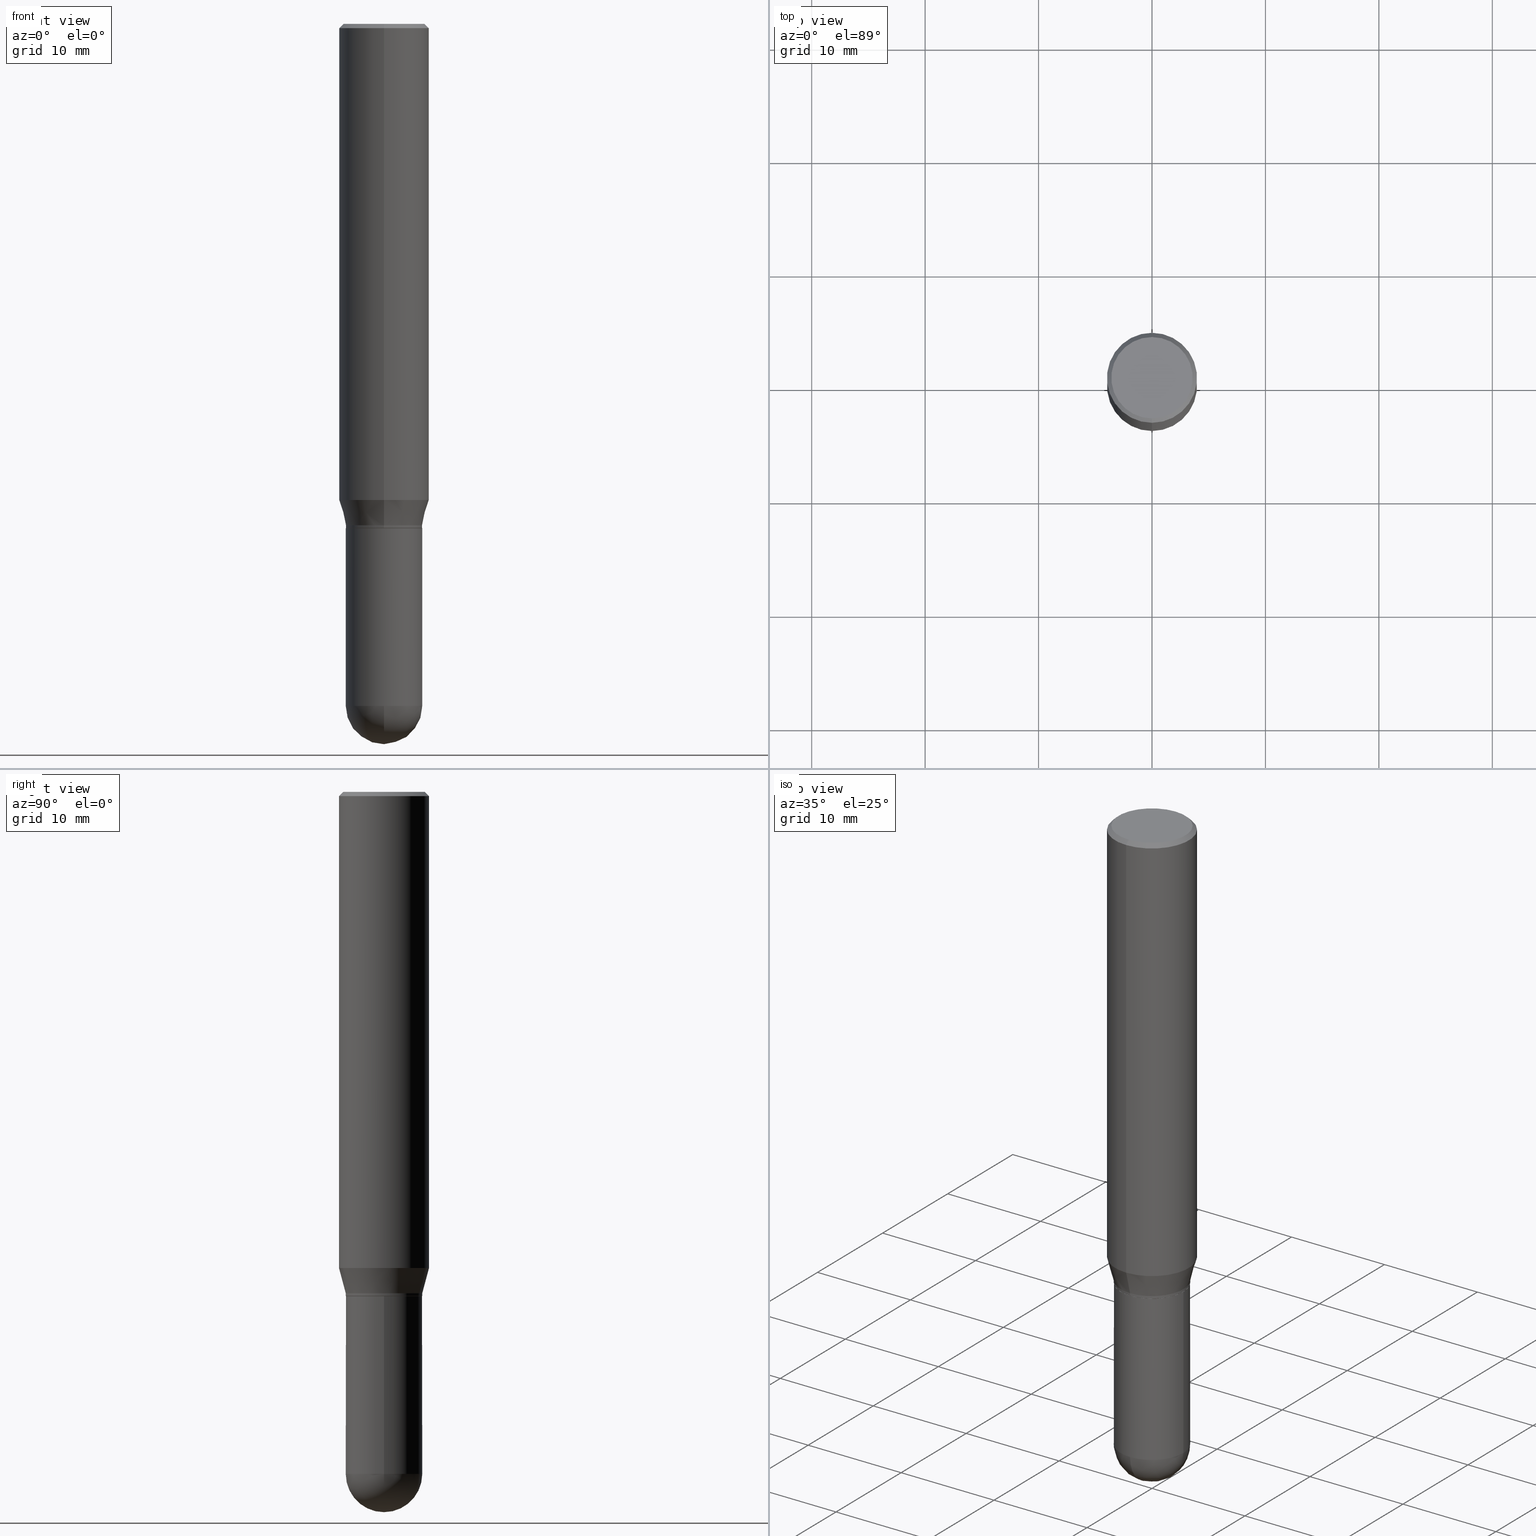
[diagram: canonical four-view strip — front | top / right | iso, engineering-drawing reading convention]
A machine part, canonical four-view strip (front | top / right | iso — engineering-drawing reading convention). The complete STEP part file that produces these views, byte-faithful:
ISO-10303-21;
HEADER;
FILE_DESCRIPTION (( 'STEP AP203' ),
    '1' );
FILE_NAME ('31146.STEP',
    '2024-03-08T15:55:13',
    ( '' ),
    ( '' ),
    'SwSTEP 2.0',
    'SolidWorks 2023',
    '' );
FILE_SCHEMA (( 'CONFIG_CONTROL_DESIGN' ));
ENDSEC;

DATA;
#1 = CALENDAR_DATE ( 2024, 8, 3 ) ;
#2 = ORIENTED_EDGE ( 'NONE', *, *, #126, .T. ) ;
#3 = DATE_TIME_ROLE ( 'creation_date' ) ;
#4 = PLANE ( 'NONE',  #323 ) ;
#5 = CIRCLE ( 'NONE', #39, 0.1327999999999999181 ) ;
#6 = VERTEX_POINT ( 'NONE', #15 ) ;
#7 = EDGE_CURVE ( 'NONE', #434, #440, #14, .T. ) ;
#8 = ORIENTED_EDGE ( 'NONE', *, *, #88, .T. ) ;
#9 = APPLICATION_CONTEXT ( 'configuration controlled 3d designs of mechanical parts and assemblies' ) ;
#10 = CARTESIAN_POINT ( 'NONE',  ( 1.026911888857325918E-15, 0.1327999999999938396, -1.740000000000000657 ) ) ;
#11 = PRODUCT_DEFINITION ( 'UNKNOWN', '', #213, #302 ) ;
#12 = ORIENTED_EDGE ( 'NONE', *, *, #279, .T. ) ;
#13 = CARTESIAN_POINT ( 'NONE',  ( 1.091087918388479371E-15, 0.1562499999999999445, -0.01500000000000066558 ) ) ;
#14 = CIRCLE ( 'NONE', #307, 0.1328000000000000014 ) ;
#15 = CARTESIAN_POINT ( 'NONE',  ( 1.038715698305832292E-15, 0.1412499999999999867, -6.132962956503047871E-16 ) ) ;
#16 = DIRECTION ( 'NONE',  ( -6.982962677686265133E-15, -1.000000000000000000, 3.496765431890256920E-15 ) ) ;
#17 = AXIS2_PLACEMENT_3D ( 'NONE', #301, #463, #270 ) ;
#18 = CARTESIAN_POINT ( 'NONE',  ( 5.788913758001455526E-29, -8.265034625309493084E-15, -2.367199999999999971 ) ) ;
#19 = ORIENTED_EDGE ( 'NONE', *, *, #259, .F. ) ;
#20 = DIRECTION ( 'NONE',  ( -6.982962677686265133E-15, -1.000000000000000000, 4.114228906120880627E-15 ) ) ;
#21 = CARTESIAN_POINT ( 'NONE',  ( 5.777557149681153201E-29, -8.281297934802172088E-15, -2.367199999999999971 ) ) ;
#22 = DIRECTION ( 'NONE',  ( 6.982962677686265922E-15, 1.000000000000000000, -4.114228906120878260E-15 ) ) ;
#23 = CARTESIAN_POINT ( 'NONE',  ( 2.936853476447729499E-45, -4.193470271377658655E-31, -1.200997118054766005E-16 ) ) ;
#24 = EDGE_CURVE ( 'NONE', #410, #476, #422, .T. ) ;
#25 = DIRECTION ( 'NONE',  ( -2.445468806185136877E-29, 3.491481338843145188E-15, 1.000000000000000000 ) ) ;
#26 = AXIS2_PLACEMENT_3D ( 'NONE', #376, #87, #217 ) ;
#27 = DIRECTION ( 'NONE',  ( -2.445345981516174728E-29, 3.491657230759845150E-15, 1.000000000000000000 ) ) ;
#28 = DIRECTION ( 'NONE',  ( 1.000000000000000000, -6.982962677686263555E-15, 0.000000000000000000 ) ) ;
#29 = DIRECTION ( 'NONE',  ( -2.445468806185136597E-29, 3.491481338843145583E-15, 1.000000000000000000 ) ) ;
#30 = CALENDAR_DATE ( 2024, 8, 3 ) ;
#31 = CARTESIAN_POINT ( 'NONE',  ( 4.254902007838144106E-29, -6.075483581522130008E-15, -1.739999999999999991 ) ) ;
#32 = CARTESIAN_POINT ( 'NONE',  ( 0.000000000000000000, 0.000000000000000000, 0.000000000000000000 ) ) ;
#33 = CIRCLE ( 'NONE', #164, 0.1327999999999999181 ) ;
#34 = CONICAL_SURFACE ( 'NONE', #133, 0.1327999999999999181, 0.2617993877991504625 ) ;
#35 = DIRECTION ( 'NONE',  ( -2.445345981516174728E-29, 3.491657230759845150E-15, 1.000000000000000000 ) ) ;
#36 = PRODUCT_RELATED_PRODUCT_CATEGORY ( 'detail', '', ( #439 ) ) ;
#37 = EDGE_LOOP ( 'NONE', ( #197, #8, #174, #398 ) ) ;
#38 = CONICAL_SURFACE ( 'NONE', #58, 0.1562500000000000000, 0.7853981633974485010 ) ;
#39 = AXIS2_PLACEMENT_3D ( 'NONE', #408, #370, #454 ) ;
#40 = AXIS2_PLACEMENT_3D ( 'NONE', #388, #115, #150 ) ;
#41 = EDGE_CURVE ( 'NONE', #93, #141, #472, .T. ) ;
#42 = FACE_OUTER_BOUND ( 'NONE', #276, .T. ) ;
#43 = ORIENTED_EDGE ( 'NONE', *, *, #391, .F. ) ;
#44 = CALENDAR_DATE ( 2024, 8, 3 ) ;
#45 = VERTEX_POINT ( 'NONE', #223 ) ;
#46 = PERSON_AND_ORGANIZATION_ROLE ( 'design_supplier' ) ;
#47 = VECTOR ( 'NONE', #504, 39.37007874015748143 ) ;
#48 = CIRCLE ( 'NONE', #160, 0.1323000000000000009 ) ;
#49 = EDGE_LOOP ( 'NONE', ( #237, #377, #494, #96 ) ) ;
#50 = DIRECTION ( 'NONE',  ( -2.445345981516174728E-29, 3.491657230759845150E-15, 1.000000000000000000 ) ) ;
#51 = DIRECTION ( 'NONE',  ( -4.851104656540965064E-15, -0.7071067811865501263, -0.7071067811865449082 ) ) ;
#52 = ADVANCED_FACE ( 'NONE', ( #187 ), #38, .T. ) ;
#53 = ORIENTED_EDGE ( 'NONE', *, *, #447, .T. ) ;
#54 = LINE ( 'NONE', #299, #498 ) ;
#55 = CARTESIAN_POINT ( 'NONE',  ( -1.091087918388478779E-15, -0.1562500000000000833, -0.01499999999999957270 ) ) ;
#56 = EDGE_LOOP ( 'NONE', ( #195, #283, #512, #19 ) ) ;
#57 = DIRECTION ( 'NONE',  ( -6.982962677686265133E-15, -1.000000000000000000, 3.496765431890256920E-15 ) ) ;
#58 = AXIS2_PLACEMENT_3D ( 'NONE', #148, #155, #266 ) ;
#59 = VERTEX_POINT ( 'NONE', #507 ) ;
#60 = DIRECTION ( 'NONE',  ( -2.445468806185136877E-29, 3.491481338843145188E-15, 1.000000000000000000 ) ) ;
#61 = CIRCLE ( 'NONE', #342, 0.1412499999999999867 ) ;
#62 = CARTESIAN_POINT ( 'NONE',  ( 9.273374435967940064E-16, 0.1327999999999917302, -2.367200000000000415 ) ) ;
#63 = ORIENTED_EDGE ( 'NONE', *, *, #172, .T. ) ;
#64 = DIRECTION ( 'NONE',  ( -6.982962677686265922E-15, -1.000000000000000000, 4.129777768199944284E-15 ) ) ;
#65 = CARTESIAN_POINT ( 'NONE',  ( -0.1328000000000000014, 9.436007530894130566E-16, -6.532345799858513932E-30 ) ) ;
#66 = CARTESIAN_POINT ( 'NONE',  ( 4.279570410823989044E-29, -6.110092342975505460E-15, -1.750000000000000222 ) ) ;
#67 = SPHERICAL_SURFACE ( 'NONE', #228, 0.1328000000000000014 ) ;
#68 = DIRECTION ( 'NONE',  ( -6.982962677686265133E-15, -1.000000000000000000, 4.114228906120880627E-15 ) ) ;
#69 = PERSON_AND_ORGANIZATION_ROLE ( 'design_owner' ) ;
#70 = ADVANCED_FACE ( 'NONE', ( #385 ), #309, .T. ) ;
#71 = DIRECTION ( 'NONE',  ( -2.445468806185136597E-29, 3.491481338843145583E-15, 1.000000000000000000 ) ) ;
#72 = COORDINATED_UNIVERSAL_TIME_OFFSET ( 5, 0, .BEHIND. ) ;
#73 = DIRECTION ( 'NONE',  ( -2.445345981516174728E-29, 3.491657230759845150E-15, 1.000000000000000000 ) ) ;
#74 = CARTESIAN_POINT ( 'NONE',  ( 5.777557149681153201E-29, -8.281297934802172088E-15, -2.367199999999999971 ) ) ;
#75 = FACE_OUTER_BOUND ( 'NONE', #37, .T. ) ;
#76 = CIRCLE ( 'NONE', #363, 0.1327999999999999181 ) ;
#77 = EDGE_LOOP ( 'NONE', ( #481, #317 ) ) ;
#78 = SHAPE_DEFINITION_REPRESENTATION ( #361, #100 ) ;
#79 = APPROVAL ( #318, 'UNSPECIFIED' ) ;
#80 = ORIENTED_EDGE ( 'NONE', *, *, #88, .F. ) ;
#81 = VERTEX_POINT ( 'NONE', #502 ) ;
#82 = CIRCLE ( 'NONE', #112, 0.1562500000000000000 ) ;
#83 = UNCERTAINTY_MEASURE_WITH_UNIT (LENGTH_MEASURE( 1.000000000000000082E-05 ), #186, 'distance_accuracy_value', 'NONE');
#84 = ADVANCED_FACE ( 'NONE', ( #349 ), #260, .F. ) ;
#85 = ORIENTED_EDGE ( 'NONE', *, *, #192, .T. ) ;
#86 = EDGE_CURVE ( 'NONE', #45, #366, #145, .T. ) ;
#87 = DIRECTION ( 'NONE',  ( -2.445345981516174448E-29, 3.491657230759844755E-15, 1.000000000000000000 ) ) ;
#88 = EDGE_CURVE ( 'NONE', #45, #290, #33, .T. ) ;
#89 = AXIS2_PLACEMENT_3D ( 'NONE', #136, #291, #452 ) ;
#90 = ORIENTED_EDGE ( 'NONE', *, *, #442, .F. ) ;
#91 = DIRECTION ( 'NONE',  ( -2.445468806185136597E-29, 3.491481338843145583E-15, 1.000000000000000000 ) ) ;
#92 = CARTESIAN_POINT ( 'NONE',  ( -0.1328000000000000014, -6.243962731053086807E-15, -2.367199999999999971 ) ) ;
#93 = VERTEX_POINT ( 'NONE', #465 ) ;
#94 = CYLINDRICAL_SURFACE ( 'NONE', #403, 0.1328000000000000014 ) ;
#95 = DIRECTION ( 'NONE',  ( -4.937700262164631661E-15, -0.7071067811865571207, 0.7071067811865379138 ) ) ;
#96 = ORIENTED_EDGE ( 'NONE', *, *, #156, .F. ) ;
#97 = CARTESIAN_POINT ( 'NONE',  ( 4.254902007838144106E-29, -6.075483581522130008E-15, -1.739999999999999991 ) ) ;
#98 = FACE_OUTER_BOUND ( 'NONE', #177, .T. ) ;
#99 = CARTESIAN_POINT ( 'NONE',  ( 0.1328000000000000014, -8.114900927739235889E-15, -2.367199999999999971 ) ) ;
#100 = ADVANCED_BREP_SHAPE_REPRESENTATION ( '31146', ( #471, #285, #40 ), #490 ) ;
#101 = AXIS2_PLACEMENT_3D ( 'NONE', #74, #424, #227 ) ;
#102 = ADVANCED_FACE ( 'NONE', ( #470 ), #262, .T. ) ;
#103 = EDGE_LOOP ( 'NONE', ( #453, #85, #124, #441 ) ) ;
#104 = PLANE ( 'NONE',  #26 ) ;
#105 = DIRECTION ( 'NONE',  ( 1.000000000000000000, -6.982962677686263555E-15, 0.000000000000000000 ) ) ;
#106 = DIRECTION ( 'NONE',  ( 1.000000000000000000, -6.982962677686263555E-15, 0.000000000000000000 ) ) ;
#107 = DIMENSIONAL_EXPONENTS ( 1.000000000000000000, 0.000000000000000000, 0.000000000000000000, 0.000000000000000000, 0.000000000000000000, 0.000000000000000000, 0.000000000000000000 ) ;
#108 = CARTESIAN_POINT ( 'NONE',  ( 0.000000000000000000, 0.000000000000000000, 0.000000000000000000 ) ) ;
#109 = EDGE_CURVE ( 'NONE', #81, #292, #118, .T. ) ;
#110 = DIRECTION ( 'NONE',  ( 2.445345981516174448E-29, -3.491657230759844755E-15, -1.000000000000000000 ) ) ;
#111 = DATE_AND_TIME ( #305, #404 ) ;
#112 = AXIS2_PLACEMENT_3D ( 'NONE', #139, #176, #57 ) ;
#113 = CARTESIAN_POINT ( 'NONE',  ( 5.777557149681153201E-29, -8.281297934802172088E-15, -2.367199999999999971 ) ) ;
#114 = DIRECTION ( 'NONE',  ( -6.982962677686265133E-15, -1.000000000000000000, 3.491657230759845150E-15 ) ) ;
#115 = DIRECTION ( 'NONE',  ( 0.000000000000000000, 0.000000000000000000, 1.000000000000000000 ) ) ;
#116 = ADVANCED_FACE ( 'NONE', ( #268 ), #67, .T. ) ;
#117 = PERSON_AND_ORGANIZATION ( #400, #364 ) ;
#118 = CIRCLE ( 'NONE', #101, 0.1328000000000000014 ) ;
#119 = AXIS2_PLACEMENT_3D ( 'NONE', #252, #443, #405 ) ;
#120 = LOCAL_TIME ( 10, 55, 13.00000000000000000, #238 ) ;
#121 = CARTESIAN_POINT ( 'NONE',  ( -9.273374435967354335E-16, -0.1327999999999999181, 4.636920802449071606E-16 ) ) ;
#122 = ORIENTED_EDGE ( 'NONE', *, *, #420, .F. ) ;
#123 = PERSON_AND_ORGANIZATION ( #400, #364 ) ;
#124 = ORIENTED_EDGE ( 'NONE', *, *, #269, .F. ) ;
#125 = CARTESIAN_POINT ( 'NONE',  ( -9.436007530893550753E-16, -0.1328000000000082725, -2.367199999999999083 ) ) ;
#126 = EDGE_CURVE ( 'NONE', #334, #476, #313, .T. ) ;
#127 = LINE ( 'NONE', #135, #396 ) ;
#128 = VECTOR ( 'NONE', #95, 39.37007874015748143 ) ;
#129 = ADVANCED_FACE ( 'NONE', ( #379 ), #432, .T. ) ;
#130 = ORIENTED_EDGE ( 'NONE', *, *, #7, .T. ) ;
#131 = ORIENTED_EDGE ( 'NONE', *, *, #279, .F. ) ;
#132 = DIRECTION ( 'NONE',  ( 6.982962677686265133E-15, 1.000000000000000000, -3.496765431890256920E-15 ) ) ;
#133 = AXIS2_PLACEMENT_3D ( 'NONE', #229, #232, #68 ) ;
#134 = ORIENTED_EDGE ( 'NONE', *, *, #406, .T. ) ;
#135 = CARTESIAN_POINT ( 'NONE',  ( -9.273374435966928350E-16, -0.1328000000000059966, -1.739999999999999547 ) ) ;
#136 = CARTESIAN_POINT ( 'NONE',  ( 5.788913758001455526E-29, -8.265034625309493084E-15, -2.367199999999999971 ) ) ;
#137 = EDGE_LOOP ( 'NONE', ( #294, #199, #436, #330 ) ) ;
#138 = DIRECTION ( 'NONE',  ( -1.807323732225331323E-15, -0.2588190451025183525, 0.9659258262890689783 ) ) ;
#139 = CARTESIAN_POINT ( 'NONE',  ( 4.040893662650484350E-29, -5.769905642217962811E-15, -1.652483408562509748 ) ) ;
#140 = EDGE_CURVE ( 'NONE', #165, #251, #288, .T. ) ;
#141 = VERTEX_POINT ( 'NONE', #258 ) ;
#142 = CARTESIAN_POINT ( 'NONE',  ( 0.1328000000000000014, -7.037429786572241288E-15, -1.750000000000000222 ) ) ;
#143 = LINE ( 'NONE', #205, #278 ) ;
#144 = EDGE_CURVE ( 'NONE', #440, #251, #419, .T. ) ;
#145 = LINE ( 'NONE', #344, #47 ) ;
#146 = CARTESIAN_POINT ( 'NONE',  ( -1.020499077168515012E-15, -0.1412499999999999867, 3.730968720393515368E-16 ) ) ;
#147 =( NAMED_UNIT ( * ) SI_UNIT ( $, .STERADIAN. ) SOLID_ANGLE_UNIT ( ) );
#148 = CARTESIAN_POINT ( 'NONE',  ( 3.668018972274291047E-31, -5.237485846139809263E-17, -0.01500000000000011914 ) ) ;
#149 = ADVANCED_FACE ( 'NONE', ( #182 ), #203, .T. ) ;
#150 = DIRECTION ( 'NONE',  ( 1.000000000000000000, 0.000000000000000000, 0.000000000000000000 ) ) ;
#151 = APPLICATION_CONTEXT ( 'configuration controlled 3d designs of mechanical parts and assemblies' ) ;
#152 = CARTESIAN_POINT ( 'NONE',  ( 5.788913758001455526E-29, -8.265034625309493084E-15, -2.367199999999999971 ) ) ;
#153 = CYLINDRICAL_SURFACE ( 'NONE', #395, 0.1562500000000000000 ) ;
#154 = CARTESIAN_POINT ( 'NONE',  ( 0.000000000000000000, 0.000000000000000000, 0.000000000000000000 ) ) ;
#155 = DIRECTION ( 'NONE',  ( 2.445345981516174728E-29, -3.491657230759845150E-15, -1.000000000000000000 ) ) ;
#156 = EDGE_CURVE ( 'NONE', #290, #201, #355, .T. ) ;
#157 = ORIENTED_EDGE ( 'NONE', *, *, #247, .F. ) ;
#158 = APPROVAL_DATE_TIME ( #200, #79 ) ;
#159 = CLOSED_SHELL ( 'NONE', ( #102, #438, #52, #430, #129, #166, #506, #421, #84, #347, #149, #485 ) ) ;
#160 = AXIS2_PLACEMENT_3D ( 'NONE', #486, #257, #64 ) ;
#161 = CC_DESIGN_APPROVAL ( #79, ( #324 ) ) ;
#162 = EDGE_CURVE ( 'NONE', #201, #59, #127, .T. ) ;
#163 = APPROVAL_STATUS ( 'not_yet_approved' ) ;
#164 = AXIS2_PLACEMENT_3D ( 'NONE', #219, #461, #346 ) ;
#165 = VERTEX_POINT ( 'NONE', #142 ) ;
#166 = ADVANCED_FACE ( 'NONE', ( #98 ), #34, .T. ) ;
#167 = ORIENTED_EDGE ( 'NONE', *, *, #489, .F. ) ;
#168 = DIRECTION ( 'NONE',  ( -1.000000000000000000, 6.982962677686265922E-15, -4.883557194083112340E-29 ) ) ;
#169 = ORIENTED_EDGE ( 'NONE', *, *, #327, .T. ) ;
#170 = LINE ( 'NONE', #462, #212 ) ;
#171 = SPHERICAL_SURFACE ( 'NONE', #183, 0.1328000000000000014 ) ;
#172 = EDGE_CURVE ( 'NONE', #362, #165, #193, .T. ) ;
#173 = CIRCLE ( 'NONE', #459, 0.1328000000000000014 ) ;
#174 = ORIENTED_EDGE ( 'NONE', *, *, #156, .T. ) ;
#175 = CC_DESIGN_PERSON_AND_ORGANIZATION_ASSIGNMENT ( #264, #425, ( #11 ) ) ;
#176 = DIRECTION ( 'NONE',  ( -2.445345981516174728E-29, 3.491657230759845150E-15, 1.000000000000000000 ) ) ;
#177 = EDGE_LOOP ( 'NONE', ( #157, #360, #487, #90 ) ) ;
#178 = DIRECTION ( 'NONE',  ( -2.445345981516174728E-29, 3.491657230759845150E-15, 1.000000000000000000 ) ) ;
#179 = DIRECTION ( 'NONE',  ( -2.445345981516174728E-29, 3.491657230759845150E-15, 1.000000000000000000 ) ) ;
#180 = DIRECTION ( 'NONE',  ( 1.000000000000000000, -6.982962677686266711E-15, 4.876176775795935232E-29 ) ) ;
#181 = DIRECTION ( 'NONE',  ( -2.445345981516174728E-29, 3.491657230759845150E-15, 1.000000000000000000 ) ) ;
#182 = FACE_OUTER_BOUND ( 'NONE', #444, .T. ) ;
#183 = AXIS2_PLACEMENT_3D ( 'NONE', #21, #168, #329 ) ;
#184 = DIRECTION ( 'NONE',  ( -6.982962677686265133E-15, -1.000000000000000000, 3.491657230759845150E-15 ) ) ;
#185 = CARTESIAN_POINT ( 'NONE',  ( 4.279570410823989044E-29, -6.110092342975505460E-15, -1.750000000000000222 ) ) ;
#186 =( CONVERSION_BASED_UNIT ( 'INCH', #354 ) LENGTH_UNIT ( ) NAMED_UNIT ( #107 ) );
#187 = FACE_OUTER_BOUND ( 'NONE', #236, .T. ) ;
#188 = DATE_AND_TIME ( #30, #499 ) ;
#189 = DIRECTION ( 'NONE',  ( -2.445468806185136597E-29, 3.491481338843145583E-15, 1.000000000000000000 ) ) ;
#190 = VECTOR ( 'NONE', #469, 39.37007874015748143 ) ;
#191 = DIRECTION ( 'NONE',  ( -6.982962677686265133E-15, -1.000000000000000000, 3.491657230759845150E-15 ) ) ;
#192 = EDGE_CURVE ( 'NONE', #141, #45, #54, .T. ) ;
#193 = LINE ( 'NONE', #383, #289 ) ;
#194 = DIRECTION ( 'NONE',  ( 1.000000000000000000, -6.982962677686265922E-15, 4.883557194083112340E-29 ) ) ;
#195 = ORIENTED_EDGE ( 'NONE', *, *, #24, .F. ) ;
#196 = CC_DESIGN_PERSON_AND_ORGANIZATION_ASSIGNMENT ( #322, #46, ( #213 ) ) ;
#197 = ORIENTED_EDGE ( 'NONE', *, *, #86, .F. ) ;
#198 = COORDINATED_UNIVERSAL_TIME_OFFSET ( 5, 0, .BEHIND. ) ;
#199 = ORIENTED_EDGE ( 'NONE', *, *, #24, .T. ) ;
#200 = DATE_AND_TIME ( #277, #273 ) ;
#201 = VERTEX_POINT ( 'NONE', #245 ) ;
#202 = AXIS2_PLACEMENT_3D ( 'NONE', #185, #189, #105 ) ;
#203 = CONICAL_SURFACE ( 'NONE', #17, 0.1323000000000000009, 0.7853981633974653764 ) ;
#204 = EDGE_LOOP ( 'NONE', ( #311, #456, #336, #216 ) ) ;
#205 = CARTESIAN_POINT ( 'NONE',  ( -1.071952812151801215E-15, -0.1562500000000000833, -0.01499999999999957270 ) ) ;
#206 = ORIENTED_EDGE ( 'NONE', *, *, #259, .T. ) ;
#207 = DIRECTION ( 'NONE',  ( -2.445468806185136597E-29, 3.491481338843145583E-15, 1.000000000000000000 ) ) ;
#208 = DIRECTION ( 'NONE',  ( -6.982962677686265133E-15, -1.000000000000000000, 3.496765431890256920E-15 ) ) ;
#209 = CC_DESIGN_PERSON_AND_ORGANIZATION_ASSIGNMENT ( #117, #316, ( #213 ) ) ;
#210 = ORIENTED_EDGE ( 'NONE', *, *, #144, .T. ) ;
#211 = CARTESIAN_POINT ( 'NONE',  ( -9.238459622578502223E-16, -0.1323000000000061072, -1.749999999999999556 ) ) ;
#212 = VECTOR ( 'NONE', #451, 39.37007874015748854 ) ;
#213 = PRODUCT_DEFINITION_FORMATION_WITH_SPECIFIED_SOURCE ( 'ANY', '', #439, .NOT_KNOWN. ) ;
#214 = VERTEX_POINT ( 'NONE', #146 ) ;
#215 = FACE_OUTER_BOUND ( 'NONE', #103, .T. ) ;
#216 = ORIENTED_EDGE ( 'NONE', *, *, #7, .F. ) ;
#217 = DIRECTION ( 'NONE',  ( -6.982962677686265922E-15, -1.000000000000000000, 3.491657230759844755E-15 ) ) ;
#218 = CARTESIAN_POINT ( 'NONE',  ( 9.863434782231850151E-16, 0.1412499999999999867, -5.532464397475664005E-16 ) ) ;
#219 = CARTESIAN_POINT ( 'NONE',  ( 4.278132794662548511E-29, -6.108654325214350452E-15, -1.749500000000000277 ) ) ;
#220 = CIRCLE ( 'NONE', #473, 0.1328000000000000014 ) ;
#221 = APPROVAL_PERSON_ORGANIZATION ( #437, #79, #312 ) ;
#222 = PERSON_AND_ORGANIZATION ( #400, #364 ) ;
#223 = CARTESIAN_POINT ( 'NONE',  ( 9.436007530894556551E-16, 0.1327999999999938952, -1.749500000000000721 ) ) ;
#224 = DIRECTION ( 'NONE',  ( -6.982962677686265133E-15, -1.000000000000000000, 3.496765431890256920E-15 ) ) ;
#225 = CC_DESIGN_PERSON_AND_ORGANIZATION_ASSIGNMENT ( #123, #319, ( #324 ) ) ;
#226 = DIRECTION ( 'NONE',  ( -2.445345981516174728E-29, 3.491657230759845150E-15, 1.000000000000000000 ) ) ;
#227 = DIRECTION ( 'NONE',  ( -7.105427357601001859E-15, -1.000000000000000000, 0.000000000000000000 ) ) ;
#228 = AXIS2_PLACEMENT_3D ( 'NONE', #113, #426, #22 ) ;
#229 = CARTESIAN_POINT ( 'NONE',  ( 4.254902007838144106E-29, -6.075483581522130008E-15, -1.739999999999999991 ) ) ;
#230 = CONICAL_SURFACE ( 'NONE', #389, 0.1562500000000000000, 0.7853981633974485010 ) ;
#231 = CARTESIAN_POINT ( 'NONE',  ( 4.254902007838144106E-29, -6.075483581522130008E-15, -1.739999999999999991 ) ) ;
#232 = DIRECTION ( 'NONE',  ( -2.445345981516174728E-29, 3.491657230759845150E-15, 1.000000000000000000 ) ) ;
#233 = CARTESIAN_POINT ( 'NONE',  ( -9.273374435966920461E-16, -0.1328000000000059411, -1.749499999999999833 ) ) ;
#234 = EDGE_CURVE ( 'NONE', #366, #201, #76, .T. ) ;
#235 = DIRECTION ( 'NONE',  ( -2.445345981516174448E-29, 3.491657230759844755E-15, 1.000000000000000000 ) ) ;
#236 = EDGE_LOOP ( 'NONE', ( #43, #169, #2, #274 ) ) ;
#237 = ORIENTED_EDGE ( 'NONE', *, *, #269, .T. ) ;
#238 = COORDINATED_UNIVERSAL_TIME_OFFSET ( 5, 0, .BEHIND. ) ;
#239 = LOCAL_TIME ( 10, 55, 13.00000000000000000, #198 ) ;
#240 = EDGE_LOOP ( 'NONE', ( #492, #122, #53, #206 ) ) ;
#241 = EDGE_LOOP ( 'NONE', ( #130, #210, #271, #401, #248 ) ) ;
#242 = CARTESIAN_POINT ( 'NONE',  ( 1.110223024625197167E-15, 0.1562499999999942824, -1.652483408562510414 ) ) ;
#243 = CONICAL_SURFACE ( 'NONE', #511, 0.1323000000000000009, 0.7853981633974653764 ) ;
#244 = ORIENTED_EDGE ( 'NONE', *, *, #140, .T. ) ;
#245 = CARTESIAN_POINT ( 'NONE',  ( -9.273374435966928350E-16, -0.1328000000000059966, -1.739999999999999547 ) ) ;
#246 = CARTESIAN_POINT ( 'NONE',  ( 3.668018972274291047E-31, -5.237485846139809263E-17, -0.01500000000000011914 ) ) ;
#247 = EDGE_CURVE ( 'NONE', #366, #410, #170, .T. ) ;
#248 = ORIENTED_EDGE ( 'NONE', *, *, #429, .T. ) ;
#249 = CARTESIAN_POINT ( 'NONE',  ( 0.000000000000000000, 0.000000000000000000, 0.000000000000000000 ) ) ;
#250 = CARTESIAN_POINT ( 'NONE',  ( 1.110223024625197364E-15, 0.1562499999999999445, -0.01500000000000066558 ) ) ;
#251 = VERTEX_POINT ( 'NONE', #331 ) ;
#252 = CARTESIAN_POINT ( 'NONE',  ( 0.000000000000000000, 0.000000000000000000, 0.000000000000000000 ) ) ;
#253 = AXIS2_PLACEMENT_3D ( 'NONE', #218, #110, #428 ) ;
#254 = AXIS2_PLACEMENT_3D ( 'NONE', #413, #207, #367 ) ;
#255 = EDGE_LOOP ( 'NONE', ( #407, #320, #326, #131 ) ) ;
#256 = DIRECTION ( 'NONE',  ( 1.000000000000000000, -6.982962677686266711E-15, 4.876176775795935232E-29 ) ) ;
#257 = DIRECTION ( 'NONE',  ( -2.445345981516174728E-29, 3.491657230759845150E-15, 1.000000000000000000 ) ) ;
#258 = CARTESIAN_POINT ( 'NONE',  ( 9.418243962500552058E-16, 0.1322999999999938947, -1.750000000000000666 ) ) ;
#259 = EDGE_CURVE ( 'NONE', #476, #334, #272, .T. ) ;
#260 = PLANE ( 'NONE',  #253 ) ;
#261 = CARTESIAN_POINT ( 'NONE',  ( 5.777557149681153201E-29, -8.281297934802172088E-15, -2.367199999999999971 ) ) ;
#262 = CYLINDRICAL_SURFACE ( 'NONE', #457, 0.1327999999999999181 ) ;
#263 = VECTOR ( 'NONE', #235, 39.37007874015748143 ) ;
#264 = PERSON_AND_ORGANIZATION ( #400, #364 ) ;
#265 = ADVANCED_FACE ( 'NONE', ( #337 ), #94, .T. ) ;
#266 = DIRECTION ( 'NONE',  ( 6.982962677686265133E-15, 1.000000000000000000, -3.496765431890256920E-15 ) ) ;
#267 = APPLICATION_PROTOCOL_DEFINITION ( 'international standard', 'config_control_design', 1994, #151 ) ;
#268 = FACE_OUTER_BOUND ( 'NONE', #255, .T. ) ;
#269 = EDGE_CURVE ( 'NONE', #290, #45, #5, .T. ) ;
#270 = DIRECTION ( 'NONE',  ( -6.982962677686265922E-15, -1.000000000000000000, 4.129777768199944284E-15 ) ) ;
#271 = ORIENTED_EDGE ( 'NONE', *, *, #140, .F. ) ;
#272 = CIRCLE ( 'NONE', #446, 0.1562500000000000000 ) ;
#273 = LOCAL_TIME ( 10, 55, 13.00000000000000000, #356 ) ;
#274 = ORIENTED_EDGE ( 'NONE', *, *, #447, .F. ) ;
#275 = DATE_TIME_ROLE ( 'classification_date' ) ;
#276 = EDGE_LOOP ( 'NONE', ( #244, #483 ) ) ;
#277 = CALENDAR_DATE ( 2024, 8, 3 ) ;
#278 = VECTOR ( 'NONE', #51, 39.37007874015748143 ) ;
#279 = EDGE_CURVE ( 'NONE', #292, #362, #373, .T. ) ;
#280 = APPROVAL_DATE_TIME ( #399, #306 ) ;
#281 = ORIENTED_EDGE ( 'NONE', *, *, #475, .T. ) ;
#282 = DIRECTION ( 'NONE',  ( -1.000000000000000000, 6.982962677686265922E-15, -4.876176775795935793E-29 ) ) ;
#283 = ORIENTED_EDGE ( 'NONE', *, *, #442, .T. ) ;
#284 = CARTESIAN_POINT ( 'NONE',  ( 3.668018972274291047E-31, -5.237485846139809263E-17, -0.01500000000000011914 ) ) ;
#285 = MANIFOLD_SOLID_BREP ( 'Body-Move/Copy2[2]', #159 ) ;
#286 = CC_DESIGN_DATE_AND_TIME_ASSIGNMENT ( #478, #275, ( #324 ) ) ;
#287 = DIRECTION ( 'NONE',  ( -2.445345981516174728E-29, 3.491657230759845150E-15, 1.000000000000000000 ) ) ;
#288 = CIRCLE ( 'NONE', #202, 0.1328000000000000014 ) ;
#289 = VECTOR ( 'NONE', #60, 39.37007874015748143 ) ;
#290 = VERTEX_POINT ( 'NONE', #233 ) ;
#291 = DIRECTION ( 'NONE',  ( -2.445468806185136597E-29, 3.491481338843145583E-15, 1.000000000000000000 ) ) ;
#292 = VERTEX_POINT ( 'NONE', #125 ) ;
#293 = CARTESIAN_POINT ( 'NONE',  ( 9.273374435967790180E-16, 0.1327999999999938952, -1.750000000000000666 ) ) ;
#294 = ORIENTED_EDGE ( 'NONE', *, *, #325, .T. ) ;
#295 = DIRECTION ( 'NONE',  ( 5.024295867788147587E-15, 0.7071067811865620056, 0.7071067811865330288 ) ) ;
#296 = DIRECTION ( 'NONE',  ( -2.445468806185136597E-29, 3.491481338843145583E-15, 1.000000000000000000 ) ) ;
#297 = AXIS2_PLACEMENT_3D ( 'NONE', #418, #179, #372 ) ;
#298 = DIRECTION ( 'NONE',  ( -6.982962677686265133E-15, -1.000000000000000000, 4.114228906120880627E-15 ) ) ;
#299 = CARTESIAN_POINT ( 'NONE',  ( 9.400480394106551510E-16, 0.1322999999999938947, -1.750000000000000666 ) ) ;
#300 = CYLINDRICAL_SURFACE ( 'NONE', #359, 0.1327999999999999181 ) ;
#301 = CARTESIAN_POINT ( 'NONE',  ( 4.279355467653306195E-29, -6.110400153829729604E-15, -1.750000000000000222 ) ) ;
#302 = DESIGN_CONTEXT ( 'detailed design', #9, 'design' ) ;
#303 =( LENGTH_UNIT ( ) NAMED_UNIT ( * ) SI_UNIT ( $, .METRE. ) );
#304 = CARTESIAN_POINT ( 'NONE',  ( 1.110223024625156343E-15, 0.1562500000000000000, -5.455714423062258293E-16 ) ) ;
#305 = CALENDAR_DATE ( 2024, 8, 3 ) ;
#306 = APPROVAL ( #163, 'UNSPECIFIED' ) ;
#307 = AXIS2_PLACEMENT_3D ( 'NONE', #152, #71, #106 ) ;
#308 = DIRECTION ( 'NONE',  ( -2.445345981516174728E-29, 3.491657230759845150E-15, 1.000000000000000000 ) ) ;
#309 = CYLINDRICAL_SURFACE ( 'NONE', #479, 0.1328000000000000014 ) ;
#310 = PERSON_AND_ORGANIZATION ( #400, #364 ) ;
#311 = ORIENTED_EDGE ( 'NONE', *, *, #509, .F. ) ;
#312 = APPROVAL_ROLE ( '' ) ;
#313 = CIRCLE ( 'NONE', #445, 0.1562500000000000000 ) ;
#314 = ADVANCED_FACE ( 'NONE', ( #42 ), #4, .F. ) ;
#315 = AXIS2_PLACEMENT_3D ( 'NONE', #332, #409, #208 ) ;
#316 = PERSON_AND_ORGANIZATION_ROLE ( 'creator' ) ;
#317 = ORIENTED_EDGE ( 'NONE', *, *, #394, .F. ) ;
#318 = APPROVAL_STATUS ( 'not_yet_approved' ) ;
#319 = PERSON_AND_ORGANIZATION_ROLE ( 'classification_officer' ) ;
#320 = ORIENTED_EDGE ( 'NONE', *, *, #509, .T. ) ;
#321 = AXIS2_PLACEMENT_3D ( 'NONE', #352, #27, #501 ) ;
#322 = PERSON_AND_ORGANIZATION ( #400, #364 ) ;
#323 = AXIS2_PLACEMENT_3D ( 'NONE', #293, #411, #282 ) ;
#324 = SECURITY_CLASSIFICATION ( '', '', #392 ) ;
#325 = EDGE_CURVE ( 'NONE', #59, #410, #82, .T. ) ;
#326 = ORIENTED_EDGE ( 'NONE', *, *, #429, .F. ) ;
#327 = EDGE_CURVE ( 'NONE', #214, #334, #143, .T. ) ;
#328 = EDGE_LOOP ( 'NONE', ( #484, #510 ) ) ;
#329 = DIRECTION ( 'NONE',  ( 6.982962677686265922E-15, 1.000000000000000000, -4.114228906120878260E-15 ) ) ;
#330 = ORIENTED_EDGE ( 'NONE', *, *, #482, .F. ) ;
#331 = CARTESIAN_POINT ( 'NONE',  ( -0.1328000000000000014, -6.243962731053086018E-15, -1.750000000000000222 ) ) ;
#332 = CARTESIAN_POINT ( 'NONE',  ( 4.040893662650484350E-29, -5.769905642217962811E-15, -1.652483408562509748 ) ) ;
#333 = AXIS2_PLACEMENT_3D ( 'NONE', #231, #390, #350 ) ;
#334 = VERTEX_POINT ( 'NONE', #55 ) ;
#335 = CYLINDRICAL_SURFACE ( 'NONE', #119, 0.1562500000000000000 ) ;
#336 = ORIENTED_EDGE ( 'NONE', *, *, #475, .F. ) ;
#337 = FACE_OUTER_BOUND ( 'NONE', #241, .T. ) ;
#338 = FACE_OUTER_BOUND ( 'NONE', #240, .T. ) ;
#339 = CC_DESIGN_DATE_AND_TIME_ASSIGNMENT ( #188, #3, ( #11 ) ) ;
#340 = CARTESIAN_POINT ( 'NONE',  ( 3.668018972274291047E-31, -5.237485846139809263E-17, -0.01500000000000011914 ) ) ;
#341 = DIRECTION ( 'NONE',  ( 2.445345981516174728E-29, -3.491657230759845150E-15, -1.000000000000000000 ) ) ;
#342 = AXIS2_PLACEMENT_3D ( 'NONE', #23, #181, #493 ) ;
#343 = CC_DESIGN_APPROVAL ( #381, ( #11 ) ) ;
#344 = CARTESIAN_POINT ( 'NONE',  ( 9.436007530894122678E-16, 0.1327999999999999181, -4.636920802449071606E-16 ) ) ;
#345 = DIRECTION ( 'NONE',  ( 6.982962677686266711E-15, 1.000000000000000000, 0.000000000000000000 ) ) ;
#346 = DIRECTION ( 'NONE',  ( -6.982962677686265133E-15, -1.000000000000000000, 4.114228906120880627E-15 ) ) ;
#347 = ADVANCED_FACE ( 'NONE', ( #455 ), #104, .F. ) ;
#348 = APPROVAL_ROLE ( '' ) ;
#349 = FACE_OUTER_BOUND ( 'NONE', #328, .T. ) ;
#350 = DIRECTION ( 'NONE',  ( -6.982962677686265133E-15, -1.000000000000000000, 4.114228906120880627E-15 ) ) ;
#351 = CIRCLE ( 'NONE', #89, 0.1328000000000000014 ) ;
#352 = CARTESIAN_POINT ( 'NONE',  ( 4.279355467653306195E-29, -6.110400153829729604E-15, -1.750000000000000222 ) ) ;
#353 = FACE_OUTER_BOUND ( 'NONE', #56, .T. ) ;
#354 = LENGTH_MEASURE_WITH_UNIT ( LENGTH_MEASURE( 0.02539999999999999897 ), #303 );
#355 = LINE ( 'NONE', #121, #263 ) ;
#356 = COORDINATED_UNIVERSAL_TIME_OFFSET ( 5, 0, .BEHIND. ) ;
#357 = AXIS2_PLACEMENT_3D ( 'NONE', #31, #496, #298 ) ;
#358 = ORIENTED_EDGE ( 'NONE', *, *, #500, .T. ) ;
#359 = AXIS2_PLACEMENT_3D ( 'NONE', #32, #226, #191 ) ;
#360 = ORIENTED_EDGE ( 'NONE', *, *, #234, .T. ) ;
#361 = PRODUCT_DEFINITION_SHAPE ( 'NONE', 'NONE',  #11 ) ;
#362 = VERTEX_POINT ( 'NONE', #99 ) ;
#363 = AXIS2_PLACEMENT_3D ( 'NONE', #97, #50, #20 ) ;
#364 = ORGANIZATION ( 'UNSPECIFIED', 'UNSPECIFIED', '' ) ;
#365 = EDGE_LOOP ( 'NONE', ( #358, #412, #450, #374 ) ) ;
#366 = VERTEX_POINT ( 'NONE', #10 ) ;
#367 = DIRECTION ( 'NONE',  ( 1.000000000000000000, -6.982962677686263555E-15, 0.000000000000000000 ) ) ;
#368 = LINE ( 'NONE', #13, #433 ) ;
#369 = ORIENTED_EDGE ( 'NONE', *, *, #394, .T. ) ;
#370 = DIRECTION ( 'NONE',  ( -2.445345981516174728E-29, 3.491657230759845150E-15, 1.000000000000000000 ) ) ;
#371 = VECTOR ( 'NONE', #387, 39.37007874015748143 ) ;
#372 = DIRECTION ( 'NONE',  ( -6.982962677686265922E-15, -1.000000000000000000, 3.491657230759845544E-15 ) ) ;
#373 = CIRCLE ( 'NONE', #254, 0.1328000000000000014 ) ;
#374 = ORIENTED_EDGE ( 'NONE', *, *, #162, .F. ) ;
#375 = ADVANCED_FACE ( 'NONE', ( #495 ), #171, .T. ) ;
#376 = CARTESIAN_POINT ( 'NONE',  ( 4.279355467653306195E-29, -6.110400153829729604E-15, -1.750000000000000222 ) ) ;
#377 = ORIENTED_EDGE ( 'NONE', *, *, #86, .T. ) ;
#378 = LINE ( 'NONE', #211, #128 ) ;
#379 = FACE_OUTER_BOUND ( 'NONE', #365, .T. ) ;
#380 = AXIS2_PLACEMENT_3D ( 'NONE', #66, #505, #28 ) ;
#381 = APPROVAL ( #386, 'UNSPECIFIED' ) ;
#382 = CARTESIAN_POINT ( 'NONE',  ( 0.000000000000000000, 0.000000000000000000, 0.000000000000000000 ) ) ;
#383 = CARTESIAN_POINT ( 'NONE',  ( 0.1328000000000000014, -9.273374435967362223E-16, 6.475562758257002307E-30 ) ) ;
#384 = APPLICATION_PROTOCOL_DEFINITION ( 'international standard', 'config_control_design', 1994, #9 ) ;
#385 = FACE_OUTER_BOUND ( 'NONE', #393, .T. ) ;
#386 = APPROVAL_STATUS ( 'not_yet_approved' ) ;
#387 = DIRECTION ( 'NONE',  ( -2.445345981516174448E-29, 3.491657230759844755E-15, 1.000000000000000000 ) ) ;
#388 = CARTESIAN_POINT ( 'NONE',  ( 0.000000000000000000, 0.000000000000000000, 0.000000000000000000 ) ) ;
#389 = AXIS2_PLACEMENT_3D ( 'NONE', #246, #341, #132 ) ;
#390 = DIRECTION ( 'NONE',  ( -2.445345981516174728E-29, 3.491657230759845150E-15, 1.000000000000000000 ) ) ;
#391 = EDGE_CURVE ( 'NONE', #214, #6, #415, .T. ) ;
#392 = SECURITY_CLASSIFICATION_LEVEL ( 'unclassified' ) ;
#393 = EDGE_LOOP ( 'NONE', ( #402, #281, #12, #63, #167 ) ) ;
#394 = EDGE_CURVE ( 'NONE', #141, #93, #48, .T. ) ;
#395 = AXIS2_PLACEMENT_3D ( 'NONE', #108, #35, #184 ) ;
#396 = VECTOR ( 'NONE', #138, 39.37007874015748854 ) ;
#397 = APPROVAL_PERSON_ORGANIZATION ( #435, #306, #477 ) ;
#398 = ORIENTED_EDGE ( 'NONE', *, *, #234, .F. ) ;
#399 = DATE_AND_TIME ( #1, #239 ) ;
#400 = PERSON ( 'UNSPECIFIED', 'UNSPECIFIED', 'UNSPECIFIED', ('UNSPECIFIED'), ('UNSPECIFIED'), ('UNSPECIFIED') ) ;
#401 = ORIENTED_EDGE ( 'NONE', *, *, #172, .F. ) ;
#402 = ORIENTED_EDGE ( 'NONE', *, *, #144, .F. ) ;
#403 = AXIS2_PLACEMENT_3D ( 'NONE', #249, #91, #256 ) ;
#404 = LOCAL_TIME ( 10, 55, 13.00000000000000000, #503 ) ;
#405 = DIRECTION ( 'NONE',  ( -6.982962677686265133E-15, -1.000000000000000000, 3.491657230759845150E-15 ) ) ;
#406 = EDGE_CURVE ( 'NONE', #93, #290, #378, .T. ) ;
#407 = ORIENTED_EDGE ( 'NONE', *, *, #109, .F. ) ;
#408 = CARTESIAN_POINT ( 'NONE',  ( 4.278132794662548511E-29, -6.108654325214350452E-15, -1.749500000000000277 ) ) ;
#409 = DIRECTION ( 'NONE',  ( -2.445345981516174728E-29, 3.491657230759845150E-15, 1.000000000000000000 ) ) ;
#410 = VERTEX_POINT ( 'NONE', #242 ) ;
#411 = DIRECTION ( 'NONE',  ( 2.438088387897960049E-29, -3.491481338843145188E-15, -1.000000000000000000 ) ) ;
#412 = ORIENTED_EDGE ( 'NONE', *, *, #247, .T. ) ;
#413 = CARTESIAN_POINT ( 'NONE',  ( 5.788913758001455526E-29, -8.265034625309493084E-15, -2.367199999999999971 ) ) ;
#414 = FACE_OUTER_BOUND ( 'NONE', #137, .T. ) ;
#415 = CIRCLE ( 'NONE', #297, 0.1412499999999999867 ) ;
#416 = CC_DESIGN_SECURITY_CLASSIFICATION ( #324, ( #213 ) ) ;
#417 = ORIENTED_EDGE ( 'NONE', *, *, #192, .F. ) ;
#418 = CARTESIAN_POINT ( 'NONE',  ( 2.936853476447729499E-45, -4.193470271377658655E-31, -1.200997118054766005E-16 ) ) ;
#419 = LINE ( 'NONE', #65, #423 ) ;
#420 = EDGE_CURVE ( 'NONE', #6, #214, #61, .T. ) ;
#421 = ADVANCED_FACE ( 'NONE', ( #338 ), #230, .T. ) ;
#422 = LINE ( 'NONE', #304, #371 ) ;
#423 = VECTOR ( 'NONE', #25, 39.37007874015748143 ) ;
#424 = DIRECTION ( 'NONE',  ( -1.000000000000000000, 7.105427357601001070E-15, -4.926315508542082329E-29 ) ) ;
#425 = PERSON_AND_ORGANIZATION_ROLE ( 'creator' ) ;
#426 = DIRECTION ( 'NONE',  ( -1.000000000000000000, 6.982962677686265922E-15, -4.883557194083112340E-29 ) ) ;
#427 = LINE ( 'NONE', #431, #190 ) ;
#428 = DIRECTION ( 'NONE',  ( 6.982962677686265922E-15, 1.000000000000000000, -3.491657230759844755E-15 ) ) ;
#429 = EDGE_CURVE ( 'NONE', #362, #434, #220, .T. ) ;
#430 = ADVANCED_FACE ( 'NONE', ( #414 ), #335, .T. ) ;
#431 = CARTESIAN_POINT ( 'NONE',  ( -1.091087918388478976E-15, -0.1562500000000000000, 5.455714423062258293E-16 ) ) ;
#432 = CONICAL_SURFACE ( 'NONE', #357, 0.1327999999999999181, 0.2617993877991504625 ) ;
#433 = VECTOR ( 'NONE', #491, 39.37007874015748143 ) ;
#434 = VERTEX_POINT ( 'NONE', #62 ) ;
#435 = PERSON_AND_ORGANIZATION ( #400, #364 ) ;
#436 = ORIENTED_EDGE ( 'NONE', *, *, #126, .F. ) ;
#437 = PERSON_AND_ORGANIZATION ( #400, #364 ) ;
#438 = ADVANCED_FACE ( 'NONE', ( #215 ), #243, .T. ) ;
#439 = PRODUCT ( '31146', '31146', '', ( #464 ) ) ;
#440 = VERTEX_POINT ( 'NONE', #92 ) ;
#441 = ORIENTED_EDGE ( 'NONE', *, *, #406, .F. ) ;
#442 = EDGE_CURVE ( 'NONE', #410, #59, #468, .T. ) ;
#443 = DIRECTION ( 'NONE',  ( -2.445345981516174728E-29, 3.491657230759845150E-15, 1.000000000000000000 ) ) ;
#444 = EDGE_LOOP ( 'NONE', ( #417, #369, #134, #80 ) ) ;
#445 = AXIS2_PLACEMENT_3D ( 'NONE', #340, #73, #224 ) ;
#446 = AXIS2_PLACEMENT_3D ( 'NONE', #284, #178, #16 ) ;
#447 = EDGE_CURVE ( 'NONE', #6, #476, #368, .T. ) ;
#448 = CC_DESIGN_APPROVAL ( #306, ( #213 ) ) ;
#449 = DIRECTION ( 'NONE',  ( -6.982962677686265922E-15, -1.000000000000000000, 4.129777768199944284E-15 ) ) ;
#450 = ORIENTED_EDGE ( 'NONE', *, *, #325, .F. ) ;
#451 = DIRECTION ( 'NONE',  ( 1.839019923739601499E-15, 0.2588190451025251249, 0.9659258262890670910 ) ) ;
#452 = DIRECTION ( 'NONE',  ( 1.000000000000000000, -6.982962677686263555E-15, 0.000000000000000000 ) ) ;
#453 = ORIENTED_EDGE ( 'NONE', *, *, #41, .T. ) ;
#454 = DIRECTION ( 'NONE',  ( -6.982962677686265133E-15, -1.000000000000000000, 4.114228906120880627E-15 ) ) ;
#455 = FACE_OUTER_BOUND ( 'NONE', #77, .T. ) ;
#456 = ORIENTED_EDGE ( 'NONE', *, *, #109, .T. ) ;
#457 = AXIS2_PLACEMENT_3D ( 'NONE', #154, #308, #114 ) ;
#458 = CARTESIAN_POINT ( 'NONE',  ( 4.279355467653306195E-29, -6.110400153829729604E-15, -1.750000000000000222 ) ) ;
#459 = AXIS2_PLACEMENT_3D ( 'NONE', #261, #194, #345 ) ;
#460 = APPROVAL_PERSON_ORGANIZATION ( #222, #381, #348 ) ;
#461 = DIRECTION ( 'NONE',  ( -2.445345981516174728E-29, 3.491657230759845150E-15, 1.000000000000000000 ) ) ;
#462 = CARTESIAN_POINT ( 'NONE',  ( 9.436007530894548662E-16, 0.1327999999999938396, -1.740000000000000657 ) ) ;
#463 = DIRECTION ( 'NONE',  ( -2.445345981516174728E-29, 3.491657230759845150E-15, 1.000000000000000000 ) ) ;
#464 = MECHANICAL_CONTEXT ( 'NONE', #151, 'mechanical' ) ;
#465 = CARTESIAN_POINT ( 'NONE',  ( -9.238459622578502223E-16, -0.1323000000000061072, -1.749999999999999556 ) ) ;
#466 = APPROVAL_DATE_TIME ( #111, #381 ) ;
#467 = CLOSED_SHELL ( 'NONE', ( #265, #375, #314, #116, #70 ) ) ;
#468 = CIRCLE ( 'NONE', #315, 0.1562500000000000000 ) ;
#469 = DIRECTION ( 'NONE',  ( -2.445345981516174448E-29, 3.491657230759844755E-15, 1.000000000000000000 ) ) ;
#470 = FACE_OUTER_BOUND ( 'NONE', #49, .T. ) ;
#471 = MANIFOLD_SOLID_BREP ( 'Body-Move/Copy2[1]', #467 ) ;
#472 = CIRCLE ( 'NONE', #321, 0.1323000000000000009 ) ;
#473 = AXIS2_PLACEMENT_3D ( 'NONE', #18, #296, #497 ) ;
#474 = CC_DESIGN_PERSON_AND_ORGANIZATION_ASSIGNMENT ( #310, #69, ( #439 ) ) ;
#475 = EDGE_CURVE ( 'NONE', #440, #292, #351, .T. ) ;
#476 = VERTEX_POINT ( 'NONE', #250 ) ;
#477 = APPROVAL_ROLE ( '' ) ;
#478 = DATE_AND_TIME ( #44, #120 ) ;
#479 = AXIS2_PLACEMENT_3D ( 'NONE', #382, #29, #180 ) ;
#480 = CIRCLE ( 'NONE', #333, 0.1327999999999999181 ) ;
#481 = ORIENTED_EDGE ( 'NONE', *, *, #41, .F. ) ;
#482 = EDGE_CURVE ( 'NONE', #59, #334, #427, .T. ) ;
#483 = ORIENTED_EDGE ( 'NONE', *, *, #489, .T. ) ;
#484 = ORIENTED_EDGE ( 'NONE', *, *, #420, .T. ) ;
#485 = ADVANCED_FACE ( 'NONE', ( #75 ), #300, .T. ) ;
#486 = CARTESIAN_POINT ( 'NONE',  ( 4.279355467653306195E-29, -6.110400153829729604E-15, -1.750000000000000222 ) ) ;
#487 = ORIENTED_EDGE ( 'NONE', *, *, #162, .T. ) ;
#488 = CIRCLE ( 'NONE', #380, 0.1328000000000000014 ) ;
#489 = EDGE_CURVE ( 'NONE', #251, #165, #488, .T. ) ;
#490 =( GEOMETRIC_REPRESENTATION_CONTEXT ( 3 ) GLOBAL_UNCERTAINTY_ASSIGNED_CONTEXT ( ( #83 ) ) GLOBAL_UNIT_ASSIGNED_CONTEXT ( ( #186, #508, #147 ) ) REPRESENTATION_CONTEXT ( 'NONE', 'WORKASPACE' ) );
#491 = DIRECTION ( 'NONE',  ( 4.937700262164548831E-15, 0.7071067811865452413, -0.7071067811865497932 ) ) ;
#492 = ORIENTED_EDGE ( 'NONE', *, *, #327, .F. ) ;
#493 = DIRECTION ( 'NONE',  ( -6.982962677686265922E-15, -1.000000000000000000, 3.491657230759845544E-15 ) ) ;
#494 = ORIENTED_EDGE ( 'NONE', *, *, #500, .F. ) ;
#495 = FACE_OUTER_BOUND ( 'NONE', #204, .T. ) ;
#496 = DIRECTION ( 'NONE',  ( -2.445345981516174728E-29, 3.491657230759845150E-15, 1.000000000000000000 ) ) ;
#497 = DIRECTION ( 'NONE',  ( 1.000000000000000000, -6.982962677686263555E-15, 0.000000000000000000 ) ) ;
#498 = VECTOR ( 'NONE', #295, 39.37007874015748143 ) ;
#499 = LOCAL_TIME ( 10, 55, 13.00000000000000000, #72 ) ;
#500 = EDGE_CURVE ( 'NONE', #201, #366, #480, .T. ) ;
#501 = DIRECTION ( 'NONE',  ( -6.982962677686265922E-15, -1.000000000000000000, 4.129777768199944284E-15 ) ) ;
#502 = CARTESIAN_POINT ( 'NONE',  ( 6.107993711302689769E-29, -8.736835001854202867E-15, -2.500000000000000000 ) ) ;
#503 = COORDINATED_UNIVERSAL_TIME_OFFSET ( 5, 0, .BEHIND. ) ;
#504 = DIRECTION ( 'NONE',  ( -2.445345981516174448E-29, 3.491657230759844755E-15, 1.000000000000000000 ) ) ;
#505 = DIRECTION ( 'NONE',  ( -2.445468806185136597E-29, 3.491481338843145583E-15, 1.000000000000000000 ) ) ;
#506 = ADVANCED_FACE ( 'NONE', ( #353 ), #153, .T. ) ;
#507 = CARTESIAN_POINT ( 'NONE',  ( -1.091087918388438547E-15, -0.1562500000000057454, -1.652483408562509304 ) ) ;
#508 =( NAMED_UNIT ( * ) PLANE_ANGLE_UNIT ( ) SI_UNIT ( $, .RADIAN. ) );
#509 = EDGE_CURVE ( 'NONE', #81, #434, #173, .T. ) ;
#510 = ORIENTED_EDGE ( 'NONE', *, *, #391, .T. ) ;
#511 = AXIS2_PLACEMENT_3D ( 'NONE', #458, #287, #449 ) ;
#512 = ORIENTED_EDGE ( 'NONE', *, *, #482, .T. ) ;
ENDSEC;
END-ISO-10303-21;
